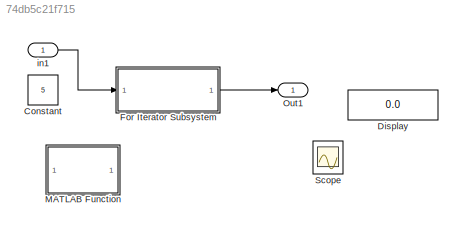
MODEL slx_74db5c21f715
KIND model
CONFIG AbsTol = auto
CONFIG EnableMultiTasking = off
CONFIG FixedStep = auto
CONFIG MaxStep = auto
CONFIG MinStep = auto
CONFIG RelTol = 1e-3
CONFIG SampleTimeConstraint = Unconstrained
CONFIG SolverName = FixedStepDiscrete
CONFIG StartTime = 0.0
CONFIG StopTime = 1
BLOCK [Constant] Constant
  OutDataTypeStr = uint32
  Value = 5
BLOCK [Display] Display
  Decimation = 1
  Ports = [1]
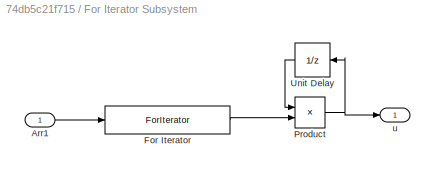
BLOCK [SubSystem] For Iterator Subsystem
  Ports = [1, 1]
  RequestExecContextInheritance = off
  TreatAsAtomicUnit = on
BLOCK [Inport] For Iterator Subsystem/Arr1
BLOCK [ForIterator] For Iterator Subsystem/For Iterator
  IterationSource = external
  IterationVariableDataType = uint32
  Ports = [1, 1]
BLOCK [Product] For Iterator Subsystem/Product
  OutDataTypeStr = uint32
  Ports = [2, 1]
BLOCK [UnitDelay] For Iterator Subsystem/Unit Delay
  HasFrameUpgradeWarning = on
  InitialCondition = 1
  SampleTime = -1
BLOCK [Outport] For Iterator Subsystem/u
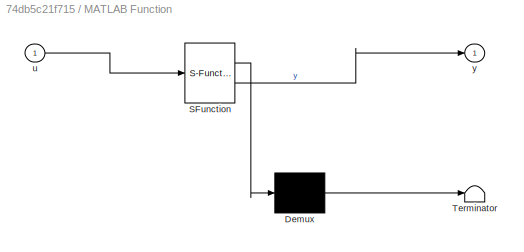
BLOCK [SubSystem] MATLAB Function
  ErrorFcn = Stateflow.Translate.translate
  PermitHierarchicalResolution = ExplicitOnly
  Ports = [1, 1]
  RequestExecContextInheritance = off
  SFBlockType = MATLAB Function
  TreatAsAtomicUnit = on
BLOCK [Demux] MATLAB Function/ Demux 
  Outputs = 1
  Ports = [1, 1]
BLOCK [S-Function] MATLAB Function/ SFunction 
  EnableBusSupport = on
  FunctionName = sf_sfun
  PortCounts = [1 2]
  Ports = [1, 2]
  SFcnIsStateOwnerBlock = off
  SFunctionDeploymentMode = off
  Tag = Stateflow S-Function 2
BLOCK [Terminator] MATLAB Function/ Terminator 
BLOCK [Inport] MATLAB Function/u
BLOCK [Outport] MATLAB Function/y
BLOCK [Outport] Out1
BLOCK [Scope] Scope
  Floating = off
  NumInputPorts = 2
  Ports = [2]
  ScopeSpecificationString = Simulink.scopes.TimeScopeBlockCfg('CurrentConfiguration', extmgr.ConfigurationSet(extmgr.Configuration('Core','General UI',true),extmgr.Configuration('Core','Source UI',true),extmgr.Configuration('Sources','WiredSimulink',true),extmgr.Configuration('Visuals','Time Domain',true,'SerializedDisplays',{struct('MinYLimReal','20.00000','MaxYLimReal','220.00000','YLabelReal','','MinYLimMag','20.00000','M...<+2016ch>
BLOCK [Inport] in1
  IconDisplay = Port number and signal name
  PortDimensions = 1
LINE For Iterator Subsystem/Arr1:1 -> For Iterator Subsystem/For Iterator:1
LINE For Iterator Subsystem/For Iterator:1 -> For Iterator Subsystem/Product:2
NET For Iterator Subsystem/Product:1 -> For Iterator Subsystem/Unit Delay:1, For Iterator Subsystem/u:1
LINE For Iterator Subsystem/Unit Delay:1 -> For Iterator Subsystem/Product:1
LINE For Iterator Subsystem:1 -> Out1:1
LINE in1:1 -> For Iterator Subsystem:1
note: NET lines group one-source signal fan-out (src -> all destinations, sorted); 1:1 wires keep LINE
CHART MATLAB Function states=1 transitions=1
  STATE_LABEL 'eML_blk_kernel()'
  STATE_LABEL 'SCRIPT:\nfunction y = Factorial(u)\n\ny = factorial(u);\n'
CHART  states=0 transitions=0
